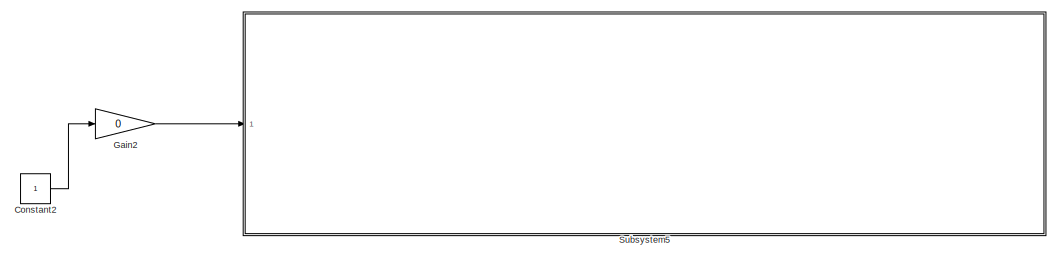
[diagram: root canvas - part 1/2, top right region]
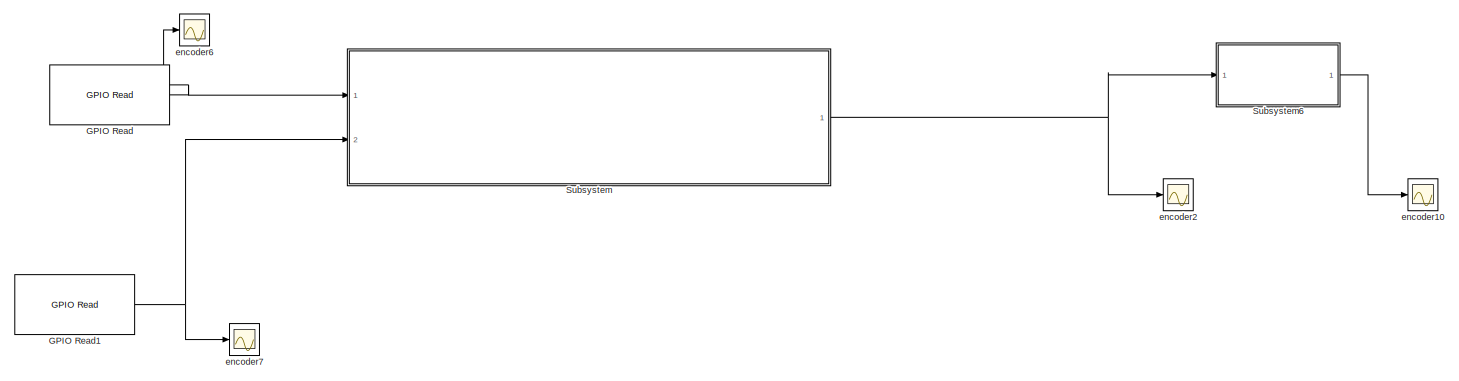
[diagram: root canvas - part 2/2, bottom center region]
MODEL slx_233d5617ed6a
KIND model
CONFIG AbsTol = auto
CONFIG EnableMultiTasking = on
CONFIG FixedStep = auto
CONFIG MaxStep = auto
CONFIG MinStep = auto
CONFIG RelTol = 1e-3
CONFIG SampleTimeConstraint = Unconstrained
CONFIG Solver = FixedStepAuto
CONFIG SolverName = FixedStepAuto
CONFIG StartTime = 0.0
CONFIG StopTime = inf
BLOCK [Constant] Constant2
BLOCK [Reference] GPIO Read  REF=embdlinuxlib/GPIO Read
  Ports = [0, 1]
  SourceBlock = embdlinuxlib/GPIO Read
  SourceProductBaseCode = RASPPI
  SourceProductName = Simulink Support Package for Raspberry Pi Hardware
  SourceType = GPIO Read
BLOCK [Reference] GPIO Read1  REF=embdlinuxlib/GPIO Read
  Ports = [0, 1]
  SourceBlock = embdlinuxlib/GPIO Read
  SourceProductBaseCode = RASPPI
  SourceProductName = Simulink Support Package for Raspberry Pi Hardware
  SourceType = GPIO Read
BLOCK [Gain] Gain2
  Gain = 0
  OutDataTypeStr = Inherit: Inherit via internal rule
  ParamDataTypeStr = Inherit: Inherit via internal rule
  SaturateOnIntegerOverflow = off
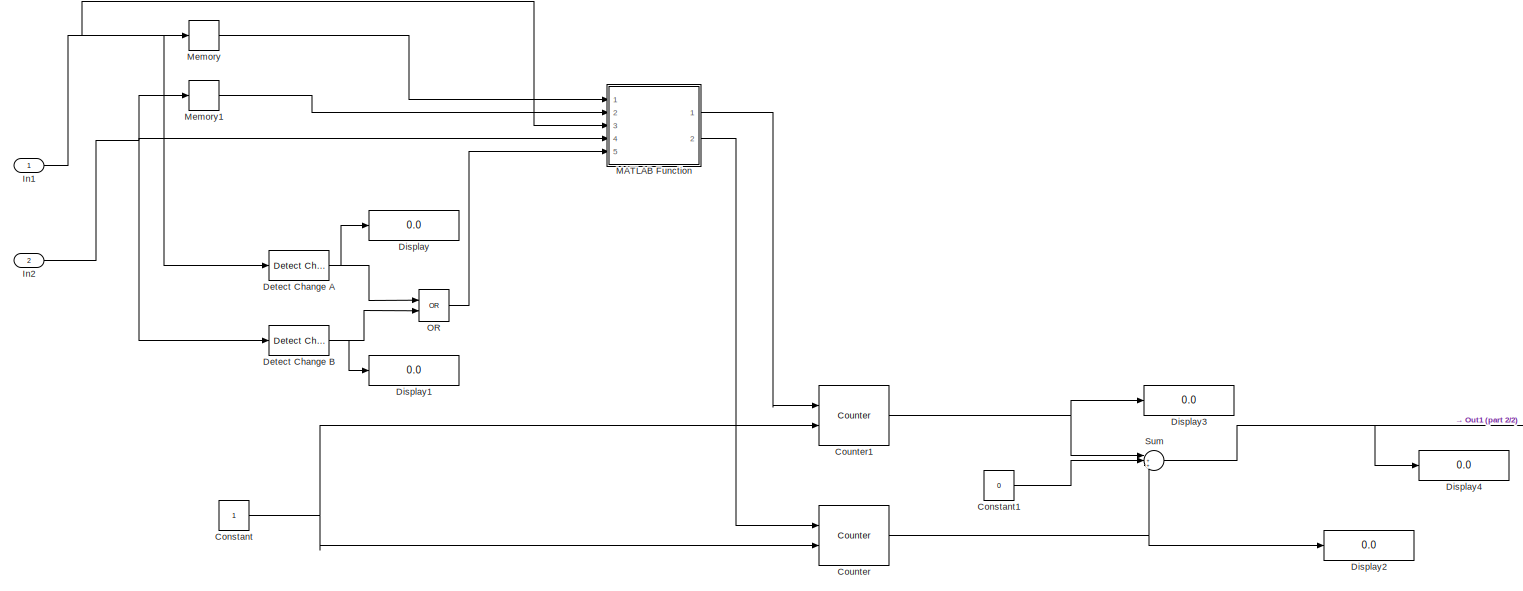
[diagram: Subsystem - part 1/2, most of the canvas]
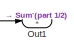
[diagram: Subsystem - part 2/2, bottom right region]
BLOCK [SubSystem] Subsystem
  Ports = [2, 1]
  RequestExecContextInheritance = off
BLOCK [Constant] Subsystem/Constant
BLOCK [Constant] Subsystem/Constant1
  Value = 0
BLOCK [Reference] Subsystem/Counter  REF=dspswit3/Counter
  Ports = [2, 1]
  SourceBlock = dspswit3/Counter
  SourceProductBaseCode = DS
  SourceProductName = DSP System Toolbox
  SourceType = Counter
BLOCK [Reference] Subsystem/Counter1  REF=dspswit3/Counter
  Ports = [2, 1]
  SourceBlock = dspswit3/Counter
  SourceProductBaseCode = DS
  SourceProductName = DSP System Toolbox
  SourceType = Counter
BLOCK [Reference] Subsystem/Detect Change A  REF=simulink/Logic and Bit
Operations/Detect
Change
  Ports = [1, 1]
  SourceBlock = simulink/Logic and Bit\nOperations/Detect\nChange
  SourceProductBaseCode = SL
  SourceProductName = Simulink
  SourceType = Detect Change
BLOCK [Reference] Subsystem/Detect Change B  REF=simulink/Logic and Bit
Operations/Detect
Change
  Ports = [1, 1]
  SourceBlock = simulink/Logic and Bit\nOperations/Detect\nChange
  SourceProductBaseCode = SL
  SourceProductName = Simulink
  SourceType = Detect Change
BLOCK [Display] Subsystem/Display
  Decimation = 1
  Ports = [1]
BLOCK [Display] Subsystem/Display1
  Decimation = 1
  Ports = [1]
BLOCK [Display] Subsystem/Display2
  Decimation = 1
  Ports = [1]
BLOCK [Display] Subsystem/Display3
  Decimation = 1
  Ports = [1]
BLOCK [Display] Subsystem/Display4
  Decimation = 1
  Ports = [1]
BLOCK [Inport] Subsystem/In1
  IconDisplay = Port number
BLOCK [Inport] Subsystem/In2
  IconDisplay = Port number
  Port = 2
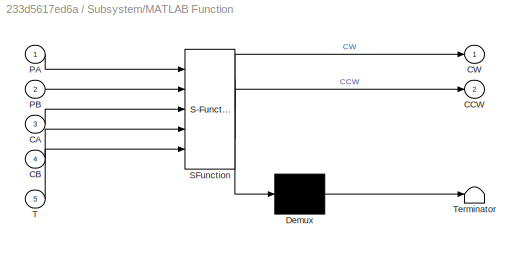
BLOCK [SubSystem] Subsystem/MATLAB Function
  ErrorFcn = Stateflow.Translate.translate
  PermitHierarchicalResolution = ExplicitOnly
  Ports = [5, 2]
  RequestExecContextInheritance = off
  SFBlockType = MATLAB Function
  TreatAsAtomicUnit = on
BLOCK [Demux] Subsystem/MATLAB Function/ Demux 
  Outputs = 1
  Ports = [1, 1]
BLOCK [S-Function] Subsystem/MATLAB Function/ SFunction 
  EnableBusSupport = on
  FunctionName = sf_sfun
  PortCounts = [5 3]
  Ports = [5, 3]
  SFcnIsStateOwnerBlock = off
  SFunctionDeploymentMode = off
  Tag = Stateflow S-Function 2
BLOCK [Terminator] Subsystem/MATLAB Function/ Terminator 
BLOCK [Inport] Subsystem/MATLAB Function/CA
  IconDisplay = Port number
  Port = 3
BLOCK [Inport] Subsystem/MATLAB Function/CB
  IconDisplay = Port number
  Port = 4
BLOCK [Outport] Subsystem/MATLAB Function/CCW
  IconDisplay = Port number
  Port = 2
BLOCK [Outport] Subsystem/MATLAB Function/CW
  IconDisplay = Port number
BLOCK [Inport] Subsystem/MATLAB Function/PA
  IconDisplay = Port number
BLOCK [Inport] Subsystem/MATLAB Function/PB
  IconDisplay = Port number
  Port = 2
BLOCK [Inport] Subsystem/MATLAB Function/T
  IconDisplay = Port number
  Port = 5
BLOCK [Memory] Subsystem/Memory
BLOCK [Memory] Subsystem/Memory1
BLOCK [Logic] Subsystem/OR
  AllPortsSameDT = off
  IconShape = distinctive
  Operator = OR
  OutDataTypeStr = boolean
  Ports = [2, 1]
BLOCK [Outport] Subsystem/Out1
  IconDisplay = Port number
BLOCK [Sum] Subsystem/Sum
  IconShape = round
  InputSameDT = off
  Inputs = |++-
  OutDataTypeStr = Inherit: Inherit via internal rule
  Ports = [3, 1]
  SaturateOnIntegerOverflow = off
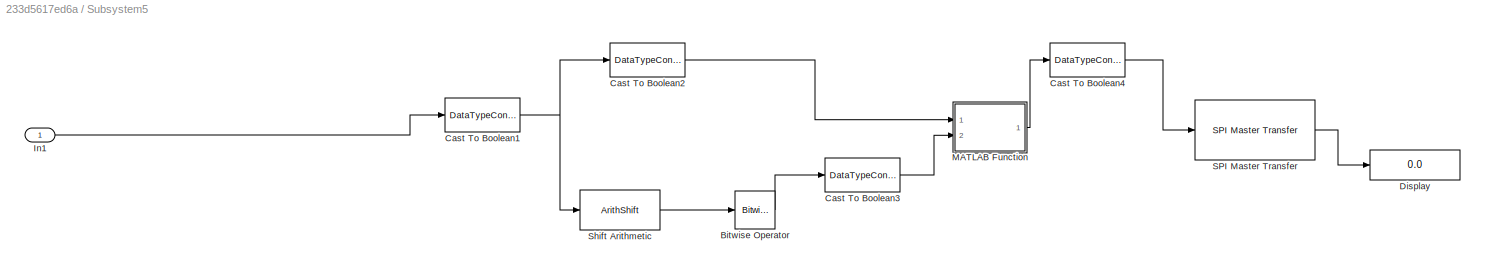
BLOCK [SubSystem] Subsystem5
  Ports = [1]
  RequestExecContextInheritance = off
BLOCK [Reference] Subsystem5/Bitwise Operator  REF=simulink/Logic and Bit
Operations/Bitwise
Operator
  Ports = [1, 1]
  SourceBlock = simulink/Logic and Bit\nOperations/Bitwise\nOperator
  SourceProductBaseCode = SL
  SourceProductName = Simulink
  SourceType = Bitwise Operator
BLOCK [DataTypeConversion] Subsystem5/Cast To Boolean1
  OutDataTypeStr = uint16
  RndMeth = Floor
  SaturateOnIntegerOverflow = off
BLOCK [DataTypeConversion] Subsystem5/Cast To Boolean2
  OutDataTypeStr = uint8
  RndMeth = Floor
  SaturateOnIntegerOverflow = off
BLOCK [DataTypeConversion] Subsystem5/Cast To Boolean3
  OutDataTypeStr = uint8
  RndMeth = Floor
  SaturateOnIntegerOverflow = off
BLOCK [DataTypeConversion] Subsystem5/Cast To Boolean4
  OutDataTypeStr = uint8
  RndMeth = Floor
  SaturateOnIntegerOverflow = off
BLOCK [Display] Subsystem5/Display
  Decimation = 1
  Ports = [1]
BLOCK [Inport] Subsystem5/In1
  IconDisplay = Port number
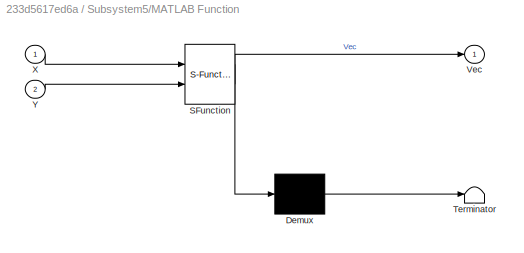
BLOCK [SubSystem] Subsystem5/MATLAB Function
  ErrorFcn = Stateflow.Translate.translate
  PermitHierarchicalResolution = ExplicitOnly
  Ports = [2, 1]
  RequestExecContextInheritance = off
  SFBlockType = MATLAB Function
  TreatAsAtomicUnit = on
BLOCK [Demux] Subsystem5/MATLAB Function/ Demux 
  Outputs = 1
  Ports = [1, 1]
BLOCK [S-Function] Subsystem5/MATLAB Function/ SFunction 
  EnableBusSupport = on
  FunctionName = sf_sfun
  PortCounts = [2 2]
  Ports = [2, 2]
  SFcnIsStateOwnerBlock = off
  SFunctionDeploymentMode = off
  Tag = Stateflow S-Function 1
BLOCK [Terminator] Subsystem5/MATLAB Function/ Terminator 
BLOCK [Outport] Subsystem5/MATLAB Function/Vec
  IconDisplay = Port number
BLOCK [Inport] Subsystem5/MATLAB Function/X
  IconDisplay = Port number
BLOCK [Inport] Subsystem5/MATLAB Function/Y
  IconDisplay = Port number
  Port = 2
BLOCK [Reference] Subsystem5/SPI Master Transfer  REF=raspberrypilib/SPI Master Transfer
  Ports = [1, 1]
  Priority = 1
  SourceBlock = raspberrypilib/SPI Master Transfer
  SourceProductBaseCode = RASPPI
  SourceProductName = Simulink Support Package for Raspberry Pi Hardware
  SourceType = codertarget.raspi.internal.SPIMasterTransfer
BLOCK [ArithShift] Subsystem5/Shift Arithmetic
  BitShiftNumber = 8
  InputPortMap = u0
  Ports = [1, 1]
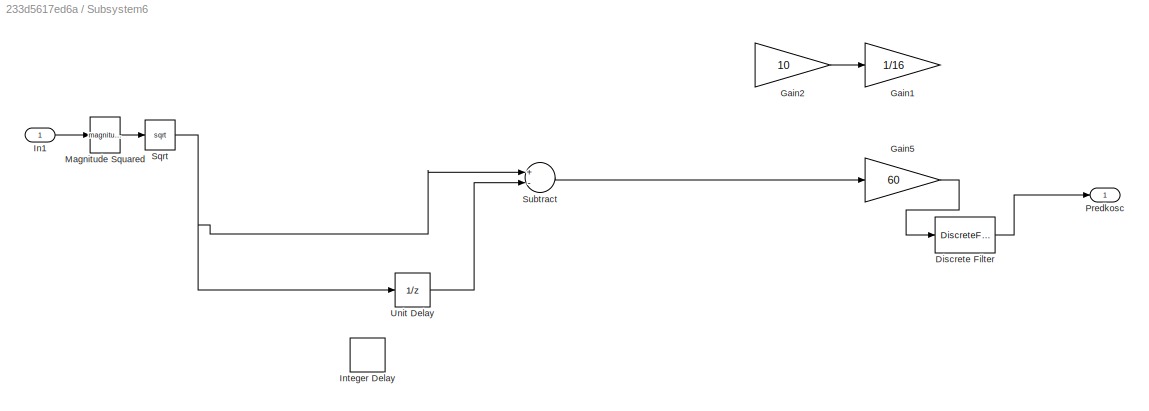
BLOCK [SubSystem] Subsystem6
  Ports = [1, 1]
  RequestExecContextInheritance = off
BLOCK [DiscreteFilter] Subsystem6/Discrete Filter
  Denominator = [20]
  InputPortMap = u0
  Numerator = ones(1,20)
  Ports = [1, 1]
BLOCK [Gain] Subsystem6/Gain1
  Gain = 1/16
  OutDataTypeStr = int16
  ParamDataTypeStr = double
  RndMeth = Round
  SaturateOnIntegerOverflow = off
BLOCK [Gain] Subsystem6/Gain2
  Gain = 10
  OutDataTypeStr = int16
  ParamDataTypeStr = double
  RndMeth = Round
  SaturateOnIntegerOverflow = off
BLOCK [Gain] Subsystem6/Gain5
  Gain = 60
  OutDataTypeStr = int16
  ParamDataTypeStr = double
  RndMeth = Round
  SaturateOnIntegerOverflow = off
BLOCK [Inport] Subsystem6/In1
  IconDisplay = Port number
BLOCK [Delay] Subsystem6/Integer Delay
  DelayLength = 1
  InputPortMap = u0
  Ports = [1, 1]
  UserDataPersistent = on
BLOCK [Math] Subsystem6/Magnitude Squared
  Operator = magnitude^2
  Ports = [1, 1]
  SignedPower = off
BLOCK [Outport] Subsystem6/Predkosc
  IconDisplay = Port number
BLOCK [Sqrt] Subsystem6/Sqrt
  IntermediateResultsDataTypeStr = double
BLOCK [Sum] Subsystem6/Subtract
  AccumDataTypeStr = int16
  InputSameDT = off
  Inputs = +-
  OutDataTypeStr = uint16
  Ports = [2, 1]
  RndMeth = Round
  SaturateOnIntegerOverflow = off
BLOCK [UnitDelay] Subsystem6/Unit Delay
  HasFrameUpgradeWarning = on
  SampleTime = -1
BLOCK [Scope] encoder10
  Floating = off
  NumInputPorts = 1
  Ports = [1]
  ScopeSpecificationString = Simulink.scopes.TimeScopeBlockCfg('CurrentConfiguration', extmgr.ConfigurationSet(extmgr.Configuration('Core','General UI',true),extmgr.Configuration('Core','Source UI',true),extmgr.Configuration('Sources','WiredSimulink',true,'DataLoggingSaveFormat','StructureWithTime','DataLoggingLimitDataPoints',true,'DataLoggingDecimation','1','DataLoggingDecimateData',true,'DataLoggingVariableName','ScopeData...<+1732ch>
BLOCK [Scope] encoder2
  Floating = off
  NumInputPorts = 1
  Ports = [1]
  ScopeSpecificationString = Simulink.scopes.TimeScopeBlockCfg('CurrentConfiguration', extmgr.ConfigurationSet(extmgr.Configuration('Core','General UI',true),extmgr.Configuration('Core','Source UI',true),extmgr.Configuration('Sources','WiredSimulink',true,'DataLoggingSaveFormat','StructureWithTime','DataLoggingLimitDataPoints',true,'DataLoggingDecimation','1','DataLoggingDecimateData',true,'DataLoggingVariableName','ScopeData...<+1732ch>
BLOCK [Scope] encoder6
  Floating = off
  NumInputPorts = 1
  Ports = [1]
  ScopeSpecificationString = Simulink.scopes.TimeScopeBlockCfg('CurrentConfiguration', extmgr.ConfigurationSet(extmgr.Configuration('Core','General UI',true),extmgr.Configuration('Core','Source UI',true),extmgr.Configuration('Sources','WiredSimulink',true,'DataLoggingSaveFormat','StructureWithTime','DataLoggingLimitDataPoints',true,'DataLoggingDecimation','1','DataLoggingDecimateData',true,'DataLoggingVariableName','ScopeData...<+1724ch>
BLOCK [Scope] encoder7
  Floating = off
  NumInputPorts = 1
  Ports = [1]
  ScopeSpecificationString = Simulink.scopes.TimeScopeBlockCfg('CurrentConfiguration', extmgr.ConfigurationSet(extmgr.Configuration('Core','General UI',true),extmgr.Configuration('Core','Source UI',true),extmgr.Configuration('Sources','WiredSimulink',true,'DataLoggingSaveFormat','StructureWithTime','DataLoggingLimitDataPoints',true,'DataLoggingDecimation','1','DataLoggingDecimateData',true,'DataLoggingVariableName','ScopeData...<+1725ch>
LINE Constant2:1 -> Gain2:1
NET GPIO Read1:1 -> Subsystem:2, encoder7:1
NET GPIO Read:1 -> Subsystem:1, encoder6:1
LINE Gain2:1 -> Subsystem5:1
LINE Subsystem/Constant1:1 -> Subsystem/Sum:2
NET Subsystem/Constant:1 -> Subsystem/Counter1:2, Subsystem/Counter:2
NET Subsystem/Counter1:1 -> Subsystem/Display3:1, Subsystem/Sum:1
NET Subsystem/Counter:1 -> Subsystem/Display2:1, Subsystem/Sum:3
NET Subsystem/Detect Change A:1 -> Subsystem/Display:1, Subsystem/OR:1
NET Subsystem/Detect Change B:1 -> Subsystem/Display1:1, Subsystem/OR:2
NET Subsystem/In1:1 -> Subsystem/Detect Change A:1, Subsystem/MATLAB Function:3, Subsystem/Memory:1
NET Subsystem/In2:1 -> Subsystem/Detect Change B:1, Subsystem/MATLAB Function:4, Subsystem/Memory1:1
LINE Subsystem/MATLAB Function:1 -> Subsystem/Counter1:1
LINE Subsystem/MATLAB Function:2 -> Subsystem/Counter:1
LINE Subsystem/Memory1:1 -> Subsystem/MATLAB Function:2
LINE Subsystem/Memory:1 -> Subsystem/MATLAB Function:1
LINE Subsystem/OR:1 -> Subsystem/MATLAB Function:5
NET Subsystem/Sum:1 -> Subsystem/Display4:1, Subsystem/Out1:1
LINE Subsystem5/Bitwise Operator:1 -> Subsystem5/Cast To Boolean3:1
NET Subsystem5/Cast To Boolean1:1 -> Subsystem5/Cast To Boolean2:1, Subsystem5/Shift Arithmetic:1
LINE Subsystem5/Cast To Boolean2:1 -> Subsystem5/MATLAB Function:1
LINE Subsystem5/Cast To Boolean3:1 -> Subsystem5/MATLAB Function:2
LINE Subsystem5/Cast To Boolean4:1 -> Subsystem5/SPI Master Transfer:1
LINE Subsystem5/In1:1 -> Subsystem5/Cast To Boolean1:1
LINE Subsystem5/MATLAB Function:1 -> Subsystem5/Cast To Boolean4:1
LINE Subsystem5/SPI Master Transfer:1 -> Subsystem5/Display:1
LINE Subsystem5/Shift Arithmetic:1 -> Subsystem5/Bitwise Operator:1
LINE Subsystem6/Discrete Filter:1 -> Subsystem6/Predkosc:1
LINE Subsystem6/Gain2:1 -> Subsystem6/Gain1:1
LINE Subsystem6/Gain5:1 -> Subsystem6/Discrete Filter:1
LINE Subsystem6/In1:1 -> Subsystem6/Magnitude Squared:1
LINE Subsystem6/Magnitude Squared:1 -> Subsystem6/Sqrt:1
NET Subsystem6/Sqrt:1 -> Subsystem6/Subtract:1, Subsystem6/Unit Delay:1
LINE Subsystem6/Subtract:1 -> Subsystem6/Gain5:1
LINE Subsystem6/Unit Delay:1 -> Subsystem6/Subtract:2
LINE Subsystem6:1 -> encoder10:1
NET Subsystem:1 -> Subsystem6:1, encoder2:1
note: NET lines group one-source signal fan-out (src -> all destinations, sorted); 1:1 wires keep LINE
CHART Subsystem5/MATLAB Function states=1 transitions=1
  STATE_LABEL 'eML_blk_kernel()'
  STATE_LABEL "SCRIPT:\nfunction Vec = Vector(X, Y)\n\n% myPI = raspi();\nVec = [Y X];\n% mySPI = spidev(myPI,'CE0');\n% out = writeRead(mySPI,[Vec]);"
CHART Subsystem/MATLAB Function states=1 transitions=1
  STATE_LABEL 'eML_blk_kernel()'
  STATE_LABEL 'SCRIPT:\nfunction [CW,CCW] = encoder(PA,PB,CA,CB,T)\n\n% persistent counter;\n% if isempty(counter)\n% counter = 0;\n% end\n% persistent aLastState;\n% if isempty(aLastState)\n% aLastState = a;\n% end\n% % \n% % out = aLastState\n% % while(1)\n%     aState = a;\n%     bState = b;\n%     if(aState ~= aLastState)\n%         bstate = b;\n%     end\n%     if(bState ~=aState)\n%         counter = counter+1;\n%     else\n%  ...<+951ch>'
